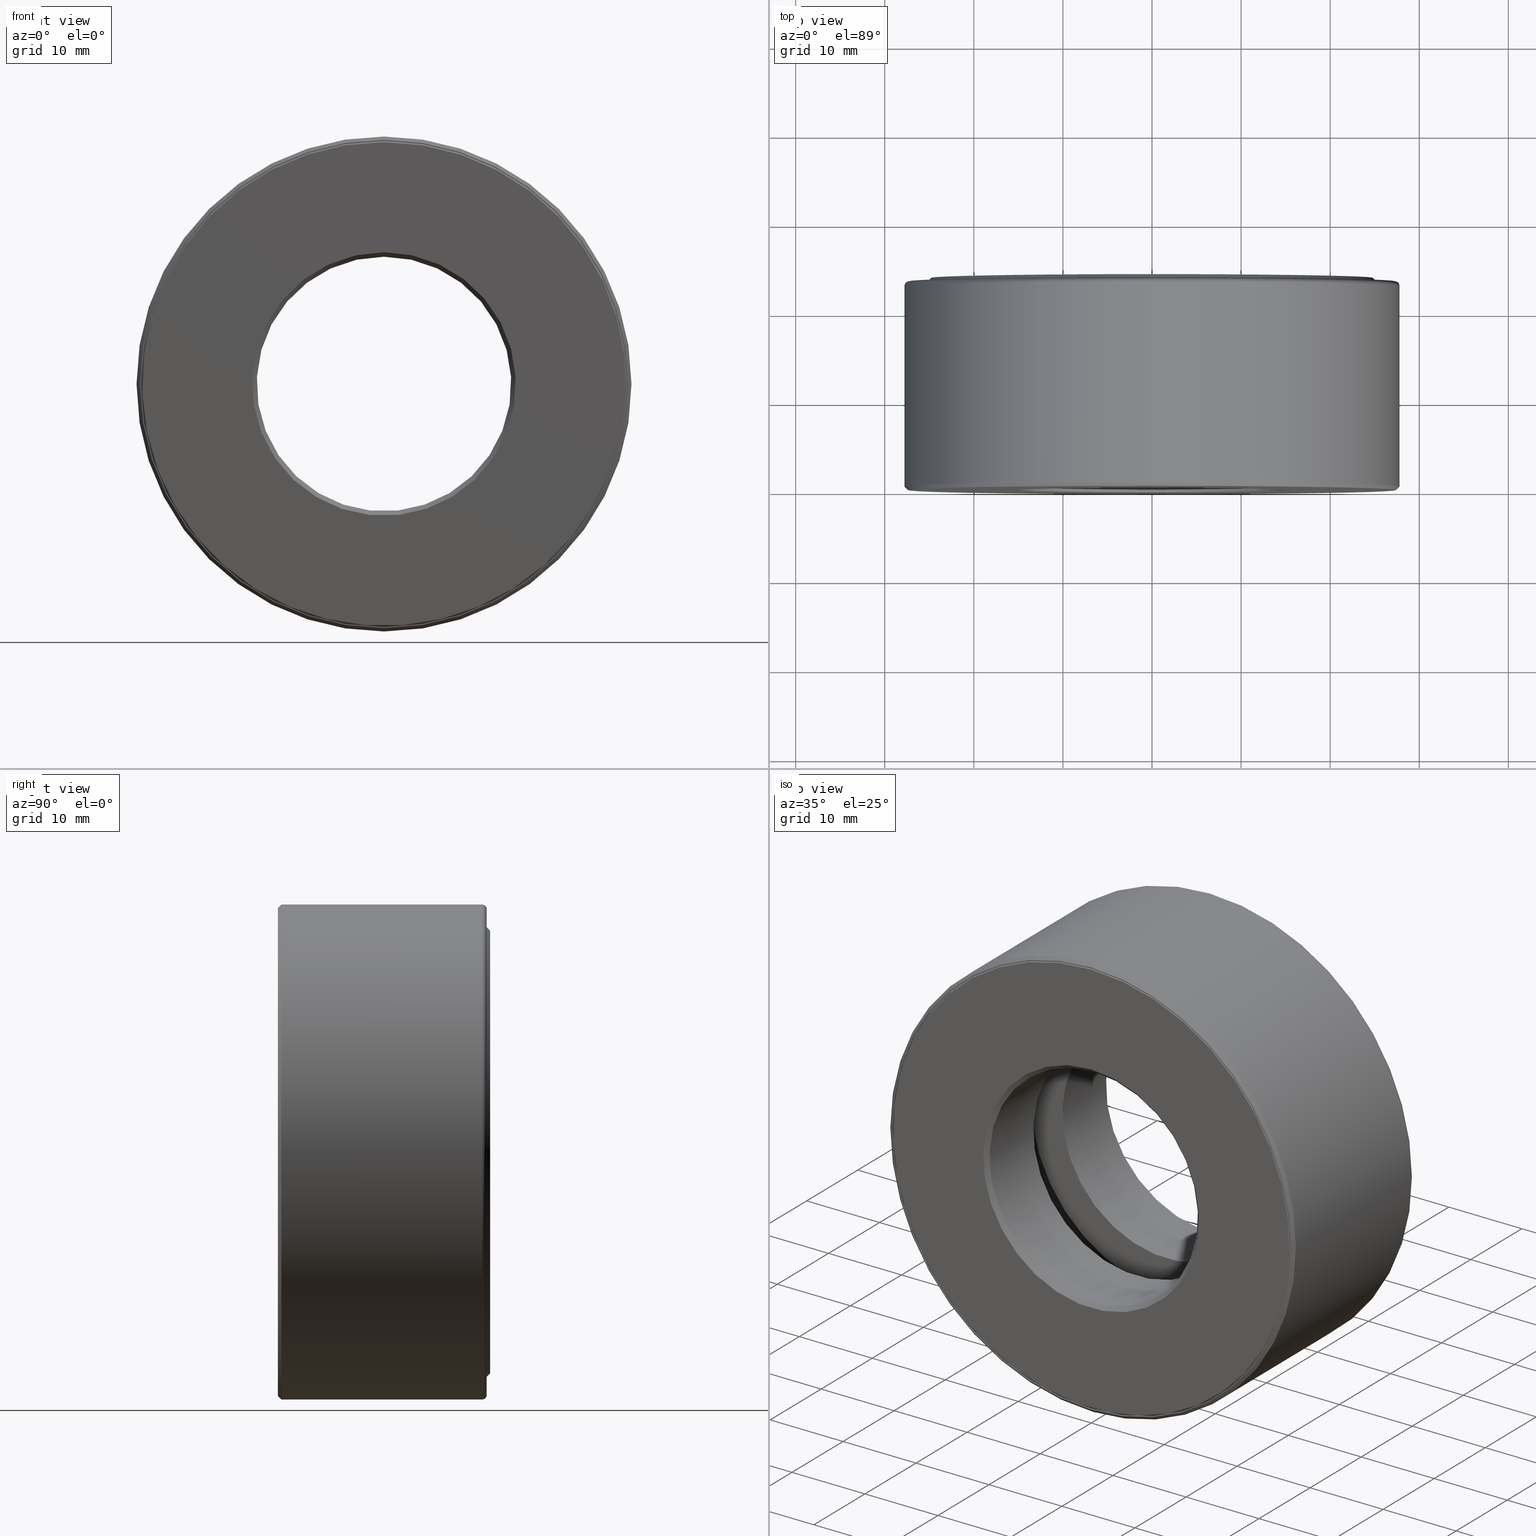
[diagram: canonical four-view strip — front | top / right | iso, engineering-drawing reading convention]
A machine part, canonical four-view strip (front | top / right | iso — engineering-drawing reading convention). The complete STEP part file that produces these views, byte-faithful:
ISO-10303-21;
HEADER;
FILE_DESCRIPTION (( 'STEP AP203' ),
    '1' );
FILE_NAME ('T-100-11.step',
    '2016-06-29T18:27:16',
    ( '' ),
    ( '' ),
    'SwSTEP 2.0',
    'SolidWorks 2016',
    '' );
FILE_SCHEMA (( 'CONFIG_CONTROL_DESIGN' ));
ENDSEC;

DATA;
#1 = DIRECTION ( 'NONE',  ( 0.0000000000000000000, 0.0000000000000000000, 1.000000000000000000 ) ) ;
#2 = ORIENTED_EDGE ( 'NONE', *, *, #174, .T. ) ;
#3 = AXIS2_PLACEMENT_3D ( 'NONE', #149, #12, #103 ) ;
#4 = EDGE_LOOP ( 'NONE', ( #470 ) ) ;
#5 = DIRECTION ( 'NONE',  ( 0.0000000000000000000, 0.0000000000000000000, 1.000000000000000000 ) ) ;
#6 = CARTESIAN_POINT ( 'NONE',  ( 0.0000000000000000000, 0.9024999999999999700, 0.0000000000000000000 ) ) ;
#7 = ADVANCED_FACE ( 'NONE', ( #176, #362 ), #20, .F. ) ;
#8 = CIRCLE ( 'NONE', #367, 0.5624999999999998900 ) ;
#9 = DIRECTION ( 'NONE',  ( 0.0000000000000000000, 0.0000000000000000000, 1.000000000000000000 ) ) ;
#10 = DIRECTION ( 'NONE',  ( -1.000000000000000000, 0.0000000000000000000, 6.982962677686263600E-015 ) ) ;
#11 = EDGE_CURVE ( 'NONE', #278, #278, #568, .T. ) ;
#12 = DIRECTION ( 'NONE',  ( -0.0000000000000000000, 1.000000000000000000, -0.0000000000000000000 ) ) ;
#13 = AXIS2_PLACEMENT_3D ( 'NONE', #291, #396, #445 ) ;
#14 = CLOSED_SHELL ( 'NONE', ( #179 ) ) ;
#15 = EDGE_LOOP ( 'NONE', ( #251 ) ) ;
#16 = PRODUCT_DEFINITION_FORMATION_WITH_SPECIFIED_SOURCE ( 'ANY', '', #436, .NOT_KNOWN. ) ;
#17 = FACE_OUTER_BOUND ( 'NONE', #122, .T. ) ;
#18 = DIRECTION ( 'NONE',  ( 0.0000000000000000000, 0.0000000000000000000, 1.000000000000000000 ) ) ;
#19 = AXIS2_PLACEMENT_3D ( 'NONE', #431, #570, #482 ) ;
#20 = PLANE ( 'NONE',  #573 ) ;
#21 = CARTESIAN_POINT ( 'NONE',  ( 0.0000000000000000000, 0.3562499999999999000, 0.7272499999999998400 ) ) ;
#22 = DIRECTION ( 'NONE',  ( 0.0000000000000000000, -1.000000000000000000, 0.0000000000000000000 ) ) ;
#23 = CIRCLE ( 'NONE', #602, 1.027250000000000000 ) ;
#24 = APPLICATION_CONTEXT ( 'configuration controlled 3d designs of mechanical parts and assemblies' ) ;
#25 = AXIS2_PLACEMENT_3D ( 'NONE', #245, #111, #158 ) ;
#26 = PERSON_AND_ORGANIZATION ( #401, #392 ) ;
#27 = FACE_OUTER_BOUND ( 'NONE', #354, .T. ) ;
#28 = CARTESIAN_POINT ( 'NONE',  ( 0.0000000000000000000, 0.3562500000000000700, 0.5625000000000001100 ) ) ;
#29 = CARTESIAN_POINT ( 'NONE',  ( 0.0000000000000000000, -6.296055922898104700E-017, 1.068750000000000100 ) ) ;
#30 = EDGE_LOOP ( 'NONE', ( #365 ) ) ;
#31 = DIRECTION ( 'NONE',  ( 0.0000000000000000000, 0.0000000000000000000, 1.000000000000000000 ) ) ;
#32 = ORIENTED_EDGE ( 'NONE', *, *, #67, .T. ) ;
#33 = APPROVAL_ROLE ( '' ) ;
#34 = AXIS2_PLACEMENT_3D ( 'NONE', #230, #465, #368 ) ;
#35 = LOCAL_TIME ( 14, 27, 16.00000000000000000, #456 ) ;
#36 = EDGE_CURVE ( 'NONE', #524, #524, #187, .T. ) ;
#37 = CIRCLE ( 'NONE', #534, 1.066749999999999900 ) ;
#38 = ADVANCED_FACE ( 'NONE', ( #68, #554 ), #340, .T. ) ;
#39 = EDGE_LOOP ( 'NONE', ( #228 ) ) ;
#40 = CALENDAR_DATE ( 2016, 29, 6 ) ;
#41 = DIRECTION ( 'NONE',  ( -0.0000000000000000000, 1.000000000000000000, -0.0000000000000000000 ) ) ;
#42 = DIRECTION ( 'NONE',  ( 0.0000000000000000000, 0.0000000000000000000, -1.000000000000000000 ) ) ;
#43 = DIRECTION ( 'NONE',  ( -0.0000000000000000000, 1.000000000000000000, -0.0000000000000000000 ) ) ;
#44 = EDGE_LOOP ( 'NONE', ( #399 ) ) ;
#45 = AXIS2_PLACEMENT_3D ( 'NONE', #308, #41, #90 ) ;
#46 = ORIENTED_EDGE ( 'NONE', *, *, #503, .F. ) ;
#47 = ADVANCED_FACE ( 'NONE', ( #289, #134 ), #113, .F. ) ;
#48 = DIRECTION ( 'NONE',  ( 0.0000000000000000000, -1.000000000000000000, 0.0000000000000000000 ) ) ;
#49 = APPROVAL_PERSON_ORGANIZATION ( #504, #407, #215 ) ;
#50 = CC_DESIGN_PERSON_AND_ORGANIZATION_ASSIGNMENT ( #26, #446, ( #595 ) ) ;
#51 = PLANE ( 'NONE',  #304 ) ;
#52 = FACE_BOUND ( 'NONE', #156, .T. ) ;
#53 = DIRECTION ( 'NONE',  ( 0.0000000000000000000, 0.0000000000000000000, 1.000000000000000000 ) ) ;
#54 = DIRECTION ( 'NONE',  ( 0.0000000000000000000, 0.0000000000000000000, 1.000000000000000000 ) ) ;
#55 = ORIENTED_EDGE ( 'NONE', *, *, #92, .T. ) ;
#56 = DIRECTION ( 'NONE',  ( 1.047444401652939500E-014, 0.0000000000000000000, 1.000000000000000000 ) ) ;
#57 = PLANE ( 'NONE',  #232 ) ;
#58 = DIRECTION ( 'NONE',  ( -0.0000000000000000000, 1.000000000000000000, -0.0000000000000000000 ) ) ;
#59 = DIRECTION ( 'NONE',  ( 6.982962677686263600E-015, -0.0000000000000000000, 1.000000000000000000 ) ) ;
#60 = APPROVAL ( #78, 'UNSPECIFIED' ) ;
#61 = EDGE_LOOP ( 'NONE', ( #527 ) ) ;
#62 = ADVANCED_FACE ( 'NONE', ( #417, #275 ), #578, .T. ) ;
#63 = CARTESIAN_POINT ( 'NONE',  ( 0.0000000000000000000, -6.398782925125907100E-017, 0.0000000000000000000 ) ) ;
#64 = VERTEX_POINT ( 'NONE', #387 ) ;
#65 = AXIS2_PLACEMENT_3D ( 'NONE', #567, #319, #54 ) ;
#66 = CARTESIAN_POINT ( 'NONE',  ( 0.0000000000000000000, 0.5812499999999999300, 0.0000000000000000000 ) ) ;
#67 = EDGE_CURVE ( 'NONE', #466, #466, #23, .T. ) ;
#68 = FACE_OUTER_BOUND ( 'NONE', #397, .T. ) ;
#69 = CONICAL_SURFACE ( 'NONE', #3, 1.078750000000000100, 0.7853981633974438400 ) ;
#70 = DIRECTION ( 'NONE',  ( 0.0000000000000000000, -1.000000000000000000, 0.0000000000000000000 ) ) ;
#71 = CARTESIAN_POINT ( 'NONE',  ( 0.0000000000000000000, 0.5812500000000000400, 1.027250000000000000 ) ) ;
#72 = ORIENTED_EDGE ( 'NONE', *, *, #372, .T. ) ;
#73 = ORIENTED_EDGE ( 'NONE', *, *, #478, .T. ) ;
#74 = CARTESIAN_POINT ( 'NONE',  ( 0.0000000000000000000, 0.9225000000000001000, 0.0000000000000000000 ) ) ;
#75 = EDGE_CURVE ( 'NONE', #405, #405, #300, .T. ) ;
#76 = PERSON_AND_ORGANIZATION ( #401, #392 ) ;
#77 = CARTESIAN_POINT ( 'NONE',  ( 0.0000000000000000000, 0.0000000000000000000, 0.0000000000000000000 ) ) ;
#78 = APPROVAL_STATUS ( 'not_yet_approved' ) ;
#79 = SPHERICAL_SURFACE ( 'NONE', #563, 0.1874999999999999400 ) ;
#80 = ORIENTED_EDGE ( 'NONE', *, *, #220, .T. ) ;
#81 = AXIS2_PLACEMENT_3D ( 'NONE', #382, #378, #384 ) ;
#82 = TOROIDAL_SURFACE ( 'NONE', #390, 1.073750000000000000, 0.02000000000000005900 ) ;
#83 = EDGE_CURVE ( 'NONE', #314, #314, #389, .T. ) ;
#84 = EDGE_LOOP ( 'NONE', ( #94 ) ) ;
#85 = ORIENTED_EDGE ( 'NONE', *, *, #210, .F. ) ;
#86 = LOCAL_TIME ( 14, 27, 16.00000000000000000, #391 ) ;
#87 = CC_DESIGN_DATE_AND_TIME_ASSIGNMENT ( #374, #585, ( #595 ) ) ;
#88 = DIRECTION ( 'NONE',  ( 1.000000000000000000, 0.0000000000000000000, -1.047444401652939500E-014 ) ) ;
#89 = ADVANCED_FACE ( 'NONE', ( #126, #221 ), #586, .F. ) ;
#90 = DIRECTION ( 'NONE',  ( 0.0000000000000000000, 0.0000000000000000000, 1.000000000000000000 ) ) ;
#91 = DIRECTION ( 'NONE',  ( -0.0000000000000000000, 1.000000000000000000, -0.0000000000000000000 ) ) ;
#92 = EDGE_CURVE ( 'NONE', #351, #351, #268, .T. ) ;
#93 = ADVANCED_BREP_SHAPE_REPRESENTATION ( 'T-100-11', ( #453, #318, #296, #218, #271, #276, #546 ), #459 ) ;
#94 = ORIENTED_EDGE ( 'NONE', *, *, #337, .T. ) ;
#95 = DIRECTION ( 'NONE',  ( 0.0000000000000000000, 0.0000000000000000000, 1.000000000000000000 ) ) ;
#96 = DIRECTION ( 'NONE',  ( 0.0000000000000000000, 0.0000000000000000000, 1.000000000000000000 ) ) ;
#97 = CYLINDRICAL_SURFACE ( 'NONE', #541, 1.093750000000000000 ) ;
#98 = CARTESIAN_POINT ( 'NONE',  ( 0.0000000000000000000, 0.9024999999999999700, 0.0000000000000000000 ) ) ;
#99 = AXIS2_PLACEMENT_3D ( 'NONE', #188, #519, #512 ) ;
#100 = ADVANCED_FACE ( 'NONE', ( #442, #325 ), #309, .F. ) ;
#101 = EDGE_LOOP ( 'NONE', ( #511 ) ) ;
#102 = CARTESIAN_POINT ( 'NONE',  ( 0.0000000000000000000, 0.0000000000000000000, 0.0000000000000000000 ) ) ;
#103 = DIRECTION ( 'NONE',  ( 0.0000000000000000000, 0.0000000000000000000, 1.000000000000000000 ) ) ;
#104 = FACE_OUTER_BOUND ( 'NONE', #342, .T. ) ;
#105 = CARTESIAN_POINT ( 'NONE',  ( 3.062902004500138500E-015, 0.4687499999999998900, 0.8772499999999998600 ) ) ;
#106 = CONICAL_SURFACE ( 'NONE', #45, 0.5625000000000001100, 0.7853981633974449500 ) ;
#107 = EDGE_LOOP ( 'NONE', ( #371 ) ) ;
#108 = CARTESIAN_POINT ( 'NONE',  ( 0.0000000000000000000, 0.9024999999999999700, 1.073750000000000000 ) ) ;
#109 = VERTEX_POINT ( 'NONE', #248 ) ;
#110 = FACE_BOUND ( 'NONE', #566, .T. ) ;
#111 = DIRECTION ( 'NONE',  ( -0.0000000000000000000, 1.000000000000000000, -0.0000000000000000000 ) ) ;
#112 = APPLICATION_PROTOCOL_DEFINITION ( 'international standard', 'config_control_design', 1994, #24 ) ;
#113 = CYLINDRICAL_SURFACE ( 'NONE', #154, 1.013750000000000200 ) ;
#114 = EDGE_LOOP ( 'NONE', ( #55 ) ) ;
#115 = AXIS2_PLACEMENT_3D ( 'NONE', #485, #250, #293 ) ;
#116 = CARTESIAN_POINT ( 'NONE',  ( 0.0000000000000000000, 0.9024999999999999700, 1.013750000000000200 ) ) ;
#117 = CALENDAR_DATE ( 2016, 29, 6 ) ;
#118 = FACE_BOUND ( 'NONE', #285, .T. ) ;
#119 = DIRECTION ( 'NONE',  ( 0.0000000000000000000, 0.0000000000000000000, 1.000000000000000000 ) ) ;
#120 = APPROVAL_STATUS ( 'not_yet_approved' ) ;
#121 = FACE_BOUND ( 'NONE', #148, .T. ) ;
#122 = EDGE_LOOP ( 'NONE', ( #520 ) ) ;
#123 = AXIS2_PLACEMENT_3D ( 'NONE', #229, #184, #516 ) ;
#124 = VERTEX_POINT ( 'NONE', #71 ) ;
#125 = CIRCLE ( 'NONE', #406, 1.066749999999999900 ) ;
#126 = FACE_OUTER_BOUND ( 'NONE', #444, .T. ) ;
#127 = CLOSED_SHELL ( 'NONE', ( #510 ) ) ;
#128 = AXIS2_PLACEMENT_3D ( 'NONE', #479, #281, #531 ) ;
#129 = ADVANCED_FACE ( 'NONE', ( #565, #195 ), #480, .F. ) ;
#130 = FACE_OUTER_BOUND ( 'NONE', #549, .T. ) ;
#131 = ADVANCED_FACE ( 'NONE', ( ), #79, .T. ) ;
#132 = AXIS2_PLACEMENT_3D ( 'NONE', #6, #424, #324 ) ;
#133 = ADVANCED_FACE ( 'NONE', ( #203, #121 ), #106, .F. ) ;
#134 = FACE_OUTER_BOUND ( 'NONE', #114, .T. ) ;
#135 = CARTESIAN_POINT ( 'NONE',  ( 0.0000000000000000000, 0.9024999999999999700, 0.0000000000000000000 ) ) ;
#136 = CLOSED_SHELL ( 'NONE', ( #100, #328, #236, #352, #47, #7, #423, #193, #471, #279, #129, #322, #361, #89, #477, #460 ) ) ;
#137 = DIRECTION ( 'NONE',  ( 0.0000000000000000000, 0.0000000000000000000, 1.000000000000000000 ) ) ;
#138 = CALENDAR_DATE ( 2016, 29, 6 ) ;
#139 = PRODUCT_RELATED_PRODUCT_CATEGORY ( 'detail', '', ( #436 ) ) ;
#140 = DIRECTION ( 'NONE',  ( 0.0000000000000000000, 0.0000000000000000000, 1.000000000000000000 ) ) ;
#141 = CIRCLE ( 'NONE', #313, 1.073750000000000000 ) ;
#142 = PLANE ( 'NONE',  #99 ) ;
#143 = ORIENTED_EDGE ( 'NONE', *, *, #503, .T. ) ;
#144 = DIRECTION ( 'NONE',  ( -0.0000000000000000000, 1.000000000000000000, -0.0000000000000000000 ) ) ;
#145 = CIRCLE ( 'NONE', #65, 1.027250000000000000 ) ;
#146 = CARTESIAN_POINT ( 'NONE',  ( 0.0000000000000000000, 0.8495000000000003700, 0.0000000000000000000 ) ) ;
#147 = EDGE_LOOP ( 'NONE', ( #380 ) ) ;
#148 = EDGE_LOOP ( 'NONE', ( #449 ) ) ;
#149 = CARTESIAN_POINT ( 'NONE',  ( 0.0000000000000000000, -6.616194359655631800E-017, 0.0000000000000000000 ) ) ;
#150 = DATE_AND_TIME ( #522, #159 ) ;
#151 = VERTEX_POINT ( 'NONE', #299 ) ;
#152 = FACE_OUTER_BOUND ( 'NONE', #147, .T. ) ;
#153 = CARTESIAN_POINT ( 'NONE',  ( 0.0000000000000000000, 0.5812499999999999300, 0.0000000000000000000 ) ) ;
#154 = AXIS2_PLACEMENT_3D ( 'NONE', #288, #335, #493 ) ;
#155 = CARTESIAN_POINT ( 'NONE',  ( 0.0000000000000000000, 0.9375000000000000000, 0.9787499999999999000 ) ) ;
#156 = EDGE_LOOP ( 'NONE', ( #80 ) ) ;
#157 = CARTESIAN_POINT ( 'NONE',  ( 0.0000000000000000000, 0.3562499999999999000, 1.073749999999999800 ) ) ;
#158 = DIRECTION ( 'NONE',  ( 0.0000000000000000000, 0.0000000000000000000, 1.000000000000000000 ) ) ;
#159 = LOCAL_TIME ( 14, 27, 16.00000000000000000, #265 ) ;
#160 = CARTESIAN_POINT ( 'NONE',  ( 0.0000000000000000000, 0.9225000000000001000, 0.0000000000000000000 ) ) ;
#161 = DIRECTION ( 'NONE',  ( 0.0000000000000000000, 0.0000000000000000000, 1.000000000000000000 ) ) ;
#162 = CIRCLE ( 'NONE', #128, 0.5625000000000001100 ) ;
#163 = CC_DESIGN_PERSON_AND_ORGANIZATION_ASSIGNMENT ( #375, #440, ( #436 ) ) ;
#164 = DIRECTION ( 'NONE',  ( 0.0000000000000000000, -0.0000000000000000000, -1.000000000000000000 ) ) ;
#165 = CARTESIAN_POINT ( 'NONE',  ( -1.004991548302126700E-015, 0.5812499999999999300, 0.0000000000000000000 ) ) ;
#166 = ORIENTED_EDGE ( 'NONE', *, *, #347, .F. ) ;
#167 = ORIENTED_EDGE ( 'NONE', *, *, #226, .F. ) ;
#168 = DATE_TIME_ROLE ( 'creation_date' ) ;
#169 = CARTESIAN_POINT ( 'NONE',  ( 0.0000000000000000000, 0.4687499999999999400, 0.0000000000000000000 ) ) ;
#170 = SECURITY_CLASSIFICATION_LEVEL ( 'unclassified' ) ;
#171 = ORIENTED_EDGE ( 'NONE', *, *, #359, .T. ) ;
#172 = ADVANCED_FACE ( 'NONE', ( #599, #348 ), #227, .F. ) ;
#173 = SPHERICAL_SURFACE ( 'NONE', #584, 0.1874999999999999400 ) ;
#174 = EDGE_CURVE ( 'NONE', #200, #200, #217, .T. ) ;
#175 = DIRECTION ( 'NONE',  ( 0.0000000000000000000, 0.0000000000000000000, 1.000000000000000000 ) ) ;
#176 = FACE_BOUND ( 'NONE', #15, .T. ) ;
#177 = ORIENTED_EDGE ( 'NONE', *, *, #36, .T. ) ;
#178 = APPROVAL ( #120, 'UNSPECIFIED' ) ;
#179 = ADVANCED_FACE ( 'NONE', ( ), #448, .T. ) ;
#180 = DIRECTION ( 'NONE',  ( -0.0000000000000000000, 1.000000000000000000, -0.0000000000000000000 ) ) ;
#181 = CARTESIAN_POINT ( 'NONE',  ( 0.0000000000000000000, 0.0000000000000000000, 0.0000000000000000000 ) ) ;
#182 = DIRECTION ( 'NONE',  ( 0.0000000000000000000, 0.0000000000000000000, -1.000000000000000000 ) ) ;
#183 = AXIS2_PLACEMENT_3D ( 'NONE', #135, #277, #96 ) ;
#184 = DIRECTION ( 'NONE',  ( -0.0000000000000000000, 1.000000000000000000, -0.0000000000000000000 ) ) ;
#185 = AXIS2_PLACEMENT_3D ( 'NONE', #223, #48, #182 ) ;
#186 = CARTESIAN_POINT ( 'NONE',  ( 0.0000000000000000000, 0.3562499999999999000, 0.0000000000000000000 ) ) ;
#187 = CIRCLE ( 'NONE', #261, 0.5625000000000001100 ) ;
#188 = CARTESIAN_POINT ( 'NONE',  ( 0.0000000000000000000, 0.9375000000000000000, 0.0000000000000000000 ) ) ;
#189 = VERTEX_POINT ( 'NONE', #108 ) ;
#190 = CIRCLE ( 'NONE', #183, 1.073750000000000000 ) ;
#191 = PRODUCT_DEFINITION ( 'UNKNOWN', '', #16, #498 ) ;
#192 = DIRECTION ( 'NONE',  ( 0.0000000000000000000, 0.0000000000000000000, 1.000000000000000000 ) ) ;
#193 = ADVANCED_FACE ( 'NONE', ( #316, #332 ), #97, .T. ) ;
#194 = DIMENSIONAL_EXPONENTS ( 1.000000000000000000, 0.0000000000000000000, 0.0000000000000000000, 0.0000000000000000000, 0.0000000000000000000, 0.0000000000000000000, 0.0000000000000000000 ) ;
#195 = FACE_OUTER_BOUND ( 'NONE', #317, .T. ) ;
#196 = EDGE_LOOP ( 'NONE', ( #463 ) ) ;
#197 = AXIS2_PLACEMENT_3D ( 'NONE', #105, #428, #577 ) ;
#198 = DIRECTION ( 'NONE',  ( -0.0000000000000000000, 1.000000000000000000, -0.0000000000000000000 ) ) ;
#199 = AXIS2_PLACEMENT_3D ( 'NONE', #169, #550, #508 ) ;
#200 = VERTEX_POINT ( 'NONE', #157 ) ;
#201 = DIRECTION ( 'NONE',  ( -0.0000000000000000000, 1.000000000000000000, -0.0000000000000000000 ) ) ;
#202 = DIRECTION ( 'NONE',  ( -0.0000000000000000000, 1.000000000000000000, -0.0000000000000000000 ) ) ;
#203 = FACE_OUTER_BOUND ( 'NONE', #39, .T. ) ;
#204 = EDGE_LOOP ( 'NONE', ( #177 ) ) ;
#205 = DIRECTION ( 'NONE',  ( 0.0000000000000000000, 0.0000000000000000000, 1.000000000000000000 ) ) ;
#206 = VERTEX_POINT ( 'NONE', #492 ) ;
#207 = CARTESIAN_POINT ( 'NONE',  ( 0.0000000000000000000, 0.0000000000000000000, 0.0000000000000000000 ) ) ;
#208 = DIRECTION ( 'NONE',  ( -0.0000000000000000000, 1.000000000000000000, -0.0000000000000000000 ) ) ;
#209 = EDGE_LOOP ( 'NONE', ( #561 ) ) ;
#210 = EDGE_CURVE ( 'NONE', #430, #430, #558, .T. ) ;
#211 =( LENGTH_UNIT ( ) NAMED_UNIT ( * ) SI_UNIT ( $, .METRE. ) );
#212 = EDGE_LOOP ( 'NONE', ( #143 ) ) ;
#213 = CARTESIAN_POINT ( 'NONE',  ( 0.0000000000000000000, 0.9375000000000000000, 0.5825000000000001300 ) ) ;
#214 = CC_DESIGN_APPROVAL ( #178, ( #595 ) ) ;
#215 = APPROVAL_ROLE ( '' ) ;
#216 = DIRECTION ( 'NONE',  ( 1.000000000000000000, 0.0000000000000000000, 0.0000000000000000000 ) ) ;
#217 = CIRCLE ( 'NONE', #395, 1.073749999999999800 ) ;
#218 = MANIFOLD_SOLID_BREP ( 'BALLS[1]', #272 ) ;
#219 = SPHERICAL_SURFACE ( 'NONE', #197, 0.1874999999999999400 ) ;
#220 = EDGE_CURVE ( 'NONE', #415, #415, #360, .T. ) ;
#221 = FACE_BOUND ( 'NONE', #500, .T. ) ;
#222 = ORIENTED_EDGE ( 'NONE', *, *, #174, .F. ) ;
#223 = CARTESIAN_POINT ( 'NONE',  ( 0.0000000000000000000, 0.02000000000000019800, 0.0000000000000000000 ) ) ;
#224 = DIRECTION ( 'NONE',  ( 0.0000000000000000000, 0.0000000000000000000, 1.000000000000000000 ) ) ;
#225 = FACE_OUTER_BOUND ( 'NONE', #569, .T. ) ;
#226 = EDGE_CURVE ( 'NONE', #557, #557, #269, .T. ) ;
#227 = TOROIDAL_SURFACE ( 'NONE', #199, 0.8772499999999998600, 0.1875000000000000800 ) ;
#228 = ORIENTED_EDGE ( 'NONE', *, *, #243, .T. ) ;
#229 = CARTESIAN_POINT ( 'NONE',  ( 0.0000000000000000000, -6.296055922898104700E-017, 0.0000000000000000000 ) ) ;
#230 = CARTESIAN_POINT ( 'NONE',  ( 0.0000000000000000000, 0.9375000000000000000, 0.0000000000000000000 ) ) ;
#231 = FACE_OUTER_BOUND ( 'NONE', #270, .T. ) ;
#232 = AXIS2_PLACEMENT_3D ( 'NONE', #98, #373, #413 ) ;
#233 = CARTESIAN_POINT ( 'NONE',  ( -9.765935570536967800E-033, -1.440622965408887200E-017, 0.0000000000000000000 ) ) ;
#234 = EDGE_LOOP ( 'NONE', ( #590 ) ) ;
#235 = ORIENTED_EDGE ( 'NONE', *, *, #347, .T. ) ;
#236 = ADVANCED_FACE ( 'NONE', ( #225, #104 ), #273, .F. ) ;
#237 = AXIS2_PLACEMENT_3D ( 'NONE', #297, #208, #537 ) ;
#238 = FACE_BOUND ( 'NONE', #355, .T. ) ;
#239 = CC_DESIGN_SECURITY_CLASSIFICATION ( #595, ( #16 ) ) ;
#240 = ORIENTED_EDGE ( 'NONE', *, *, #410, .T. ) ;
#241 = ORIENTED_EDGE ( 'NONE', *, *, #552, .F. ) ;
#242 = DIRECTION ( 'NONE',  ( -0.0000000000000000000, 1.000000000000000000, -0.0000000000000000000 ) ) ;
#243 = EDGE_CURVE ( 'NONE', #515, #515, #393, .T. ) ;
#244 = VERTEX_POINT ( 'NONE', #28 ) ;
#245 = CARTESIAN_POINT ( 'NONE',  ( 0.0000000000000000000, 0.3562499999999999000, 0.0000000000000000000 ) ) ;
#246 = CIRCLE ( 'NONE', #598, 0.9787499999999999000 ) ;
#247 = CARTESIAN_POINT ( 'NONE',  ( 0.0000000000000000000, 0.5812499999999999300, 0.5625000000000001100 ) ) ;
#248 = CARTESIAN_POINT ( 'NONE',  ( 0.0000000000000000000, 0.004999999999999680000, 1.073749999999999800 ) ) ;
#249 = EDGE_LOOP ( 'NONE', ( #241 ) ) ;
#250 = DIRECTION ( 'NONE',  ( 0.0000000000000000000, -1.000000000000000000, 0.0000000000000000000 ) ) ;
#251 = ORIENTED_EDGE ( 'NONE', *, *, #92, .F. ) ;
#252 = PLANE ( 'NONE',  #377 ) ;
#253 = AXIS2_PLACEMENT_3D ( 'NONE', #467, #370, #95 ) ;
#254 = CC_DESIGN_APPROVAL ( #60, ( #191 ) ) ;
#255 = PERSON_AND_ORGANIZATION ( #401, #392 ) ;
#256 = FACE_BOUND ( 'NONE', #326, .T. ) ;
#257 = CARTESIAN_POINT ( 'NONE',  ( 0.0000000000000000000, 0.9024999999999999700, 1.093750000000000000 ) ) ;
#258 = CARTESIAN_POINT ( 'NONE',  ( 0.0000000000000000000, 0.3562499999999999000, 0.0000000000000000000 ) ) ;
#259 = CARTESIAN_POINT ( 'NONE',  ( 0.0000000000000000000, 0.5812499999999999300, 1.066749999999999900 ) ) ;
#260 = ORIENTED_EDGE ( 'NONE', *, *, #383, .T. ) ;
#261 = AXIS2_PLACEMENT_3D ( 'NONE', #339, #539, #161 ) ;
#262 = APPROVAL_STATUS ( 'not_yet_approved' ) ;
#263 = EDGE_LOOP ( 'NONE', ( #310 ) ) ;
#264 = CARTESIAN_POINT ( 'NONE',  ( 0.0000000000000000000, -6.296055922898104700E-017, 0.0000000000000000000 ) ) ;
#265 = COORDINATED_UNIVERSAL_TIME_OFFSET ( 5, 0, .BEHIND. ) ;
#266 = FACE_OUTER_BOUND ( 'NONE', #212, .T. ) ;
#267 = AXIS2_PLACEMENT_3D ( 'NONE', #66, #144, #472 ) ;
#268 = CIRCLE ( 'NONE', #526, 1.013750000000000200 ) ;
#269 = CIRCLE ( 'NONE', #327, 0.5825000000000000200 ) ;
#270 = EDGE_LOOP ( 'NONE', ( #409 ) ) ;
#271 = MANIFOLD_SOLID_BREP ( 'BALLS[2]', #127 ) ;
#272 = CLOSED_SHELL ( 'NONE', ( #523 ) ) ;
#273 = CYLINDRICAL_SURFACE ( 'NONE', #253, 1.073749999999999800 ) ;
#274 = DIRECTION ( 'NONE',  ( -0.0000000000000000000, 1.000000000000000000, 0.0000000000000000000 ) ) ;
#275 = FACE_BOUND ( 'NONE', #209, .T. ) ;
#276 = MANIFOLD_SOLID_BREP ( 'BALLS[3]', #14 ) ;
#277 = DIRECTION ( 'NONE',  ( -0.0000000000000000000, 1.000000000000000000, -0.0000000000000000000 ) ) ;
#278 = VERTEX_POINT ( 'NONE', #21 ) ;
#279 = ADVANCED_FACE ( 'NONE', ( #494, #256 ), #51, .F. ) ;
#280 = AXIS2_PLACEMENT_3D ( 'NONE', #186, #521, #323 ) ;
#281 = DIRECTION ( 'NONE',  ( -0.0000000000000000000, 1.000000000000000000, -0.0000000000000000000 ) ) ;
#282 = ADVANCED_FACE ( 'NONE', ( #369, #231 ), #594, .F. ) ;
#283 = CARTESIAN_POINT ( 'NONE',  ( 0.0000000000000000000, 0.0000000000000000000, 0.0000000000000000000 ) ) ;
#284 = ORIENTED_EDGE ( 'NONE', *, *, #83, .F. ) ;
#285 = EDGE_LOOP ( 'NONE', ( #46 ) ) ;
#286 = DIRECTION ( 'NONE',  ( 0.0000000000000000000, 0.0000000000000000000, 1.000000000000000000 ) ) ;
#287 = DIRECTION ( 'NONE',  ( -0.0000000000000000000, 1.000000000000000000, -0.0000000000000000000 ) ) ;
#288 = CARTESIAN_POINT ( 'NONE',  ( 0.0000000000000000000, 0.0000000000000000000, 0.0000000000000000000 ) ) ;
#289 = FACE_OUTER_BOUND ( 'NONE', #249, .T. ) ;
#290 = DIRECTION ( 'NONE',  ( 0.0000000000000000000, 0.0000000000000000000, 1.000000000000000000 ) ) ;
#291 = CARTESIAN_POINT ( 'NONE',  ( 0.0000000000000000000, 0.9024999999999999700, 0.0000000000000000000 ) ) ;
#292 = VERTEX_POINT ( 'NONE', #259 ) ;
#293 = DIRECTION ( 'NONE',  ( 0.0000000000000000000, 0.0000000000000000000, -1.000000000000000000 ) ) ;
#294 = FACE_BOUND ( 'NONE', #84, .T. ) ;
#295 = DIRECTION ( 'NONE',  ( 0.0000000000000000000, -1.000000000000000000, 0.0000000000000000000 ) ) ;
#296 = MANIFOLD_SOLID_BREP ( 'Revolve3', #502 ) ;
#297 = CARTESIAN_POINT ( 'NONE',  ( 0.0000000000000000000, 0.0000000000000000000, 0.0000000000000000000 ) ) ;
#298 = AXIS2_PLACEMENT_3D ( 'NONE', #400, #43, #461 ) ;
#299 = CARTESIAN_POINT ( 'NONE',  ( 0.0000000000000000000, 0.5812500000000000400, 0.7272499999999998400 ) ) ;
#300 = CIRCLE ( 'NONE', #439, 1.068750000000000100 ) ;
#301 = EDGE_LOOP ( 'NONE', ( #284 ) ) ;
#302 = CARTESIAN_POINT ( 'NONE',  ( 0.0000000000000000000, 0.4687499999999999400, 0.0000000000000000000 ) ) ;
#303 = APPROVAL_ROLE ( '' ) ;
#304 = AXIS2_PLACEMENT_3D ( 'NONE', #315, #321, #1 ) ;
#305 = CLOSED_SHELL ( 'NONE', ( #597, #172, #556, #282, #133, #363, #62, #38 ) ) ;
#306 = CYLINDRICAL_SURFACE ( 'NONE', #452, 0.5625000000000000000 ) ;
#307 = AXIS2_PLACEMENT_3D ( 'NONE', #63, #202, #18 ) ;
#308 = CARTESIAN_POINT ( 'NONE',  ( 0.0000000000000000000, 0.9174999999999998700, 0.0000000000000000000 ) ) ;
#309 = TOROIDAL_SURFACE ( 'NONE', #468, 0.8772499999999998600, 0.1875000000000000600 ) ;
#310 = ORIENTED_EDGE ( 'NONE', *, *, #243, .F. ) ;
#311 = CARTESIAN_POINT ( 'NONE',  ( -9.188706013500415000E-015, 0.4687499999999998900, -0.8772499999999998600 ) ) ;
#312 = PERSON_AND_ORGANIZATION ( #401, #392 ) ;
#313 = AXIS2_PLACEMENT_3D ( 'NONE', #160, #548, #290 ) ;
#314 = VERTEX_POINT ( 'NONE', #388 ) ;
#315 = CARTESIAN_POINT ( 'NONE',  ( -1.751974655613626800E-031, -6.507488642390768800E-017, 0.0000000000000000000 ) ) ;
#316 = FACE_OUTER_BOUND ( 'NONE', #454, .T. ) ;
#317 = EDGE_LOOP ( 'NONE', ( #536 ) ) ;
#318 = MANIFOLD_SOLID_BREP ( 'Revolve2[2]', #305 ) ;
#319 = DIRECTION ( 'NONE',  ( -0.0000000000000000000, 1.000000000000000000, -0.0000000000000000000 ) ) ;
#320 = FACE_OUTER_BOUND ( 'NONE', #107, .T. ) ;
#321 = DIRECTION ( 'NONE',  ( -0.0000000000000000000, 1.000000000000000000, 0.0000000000000000000 ) ) ;
#322 = ADVANCED_FACE ( 'NONE', ( #130, #238 ), #605, .T. ) ;
#323 = DIRECTION ( 'NONE',  ( 0.0000000000000000000, -0.0000000000000000000, -1.000000000000000000 ) ) ;
#324 = DIRECTION ( 'NONE',  ( 0.0000000000000000000, 0.0000000000000000000, 1.000000000000000000 ) ) ;
#325 = FACE_OUTER_BOUND ( 'NONE', #560, .T. ) ;
#326 = EDGE_LOOP ( 'NONE', ( #72 ) ) ;
#327 = AXIS2_PLACEMENT_3D ( 'NONE', #606, #58, #462 ) ;
#328 = ADVANCED_FACE ( 'NONE', ( #336, #589 ), #416, .F. ) ;
#329 = COORDINATED_UNIVERSAL_TIME_OFFSET ( 5, 0, .BEHIND. ) ;
#330 = PLANE ( 'NONE',  #379 ) ;
#331 = PLANE ( 'NONE',  #81 ) ;
#332 = FACE_OUTER_BOUND ( 'NONE', #196, .T. ) ;
#333 = ORIENTED_EDGE ( 'NONE', *, *, #337, .F. ) ;
#334 = CARTESIAN_POINT ( 'NONE',  ( 0.8772499999999998600, 0.4687499999999998900, -6.125804009000276900E-015 ) ) ;
#335 = DIRECTION ( 'NONE',  ( -0.0000000000000000000, 1.000000000000000000, -0.0000000000000000000 ) ) ;
#336 = FACE_BOUND ( 'NONE', #490, .T. ) ;
#337 = EDGE_CURVE ( 'NONE', #124, #124, #145, .T. ) ;
#338 = MECHANICAL_CONTEXT ( 'NONE', #24, 'mechanical' ) ;
#339 = CARTESIAN_POINT ( 'NONE',  ( 0.0000000000000000000, 0.9174999999999998700, 0.0000000000000000000 ) ) ;
#340 = CYLINDRICAL_SURFACE ( 'NONE', #237, 1.066749999999999900 ) ;
#341 = CARTESIAN_POINT ( 'NONE',  ( 0.0000000000000000000, 0.9225000000000001000, 1.013750000000000200 ) ) ;
#342 = EDGE_LOOP ( 'NONE', ( #235 ) ) ;
#343 = DATE_AND_TIME ( #40, #86 ) ;
#344 =( CONVERSION_BASED_UNIT ( 'INCH', #593 ) LENGTH_UNIT ( ) NAMED_UNIT ( #194 ) );
#345 = FACE_OUTER_BOUND ( 'NONE', #301, .T. ) ;
#346 = CARTESIAN_POINT ( 'NONE',  ( 0.0000000000000000000, -6.616194359655631800E-017, 1.078750000000000100 ) ) ;
#347 = EDGE_CURVE ( 'NONE', #189, #189, #190, .T. ) ;
#348 = FACE_OUTER_BOUND ( 'NONE', #579, .T. ) ;
#349 = ORIENTED_EDGE ( 'NONE', *, *, #513, .T. ) ;
#350 = APPROVAL_DATE_TIME ( #464, #178 ) ;
#351 = VERTEX_POINT ( 'NONE', #341 ) ;
#352 = ADVANCED_FACE ( 'NONE', ( #506, #438 ), #57, .F. ) ;
#353 = AXIS2_PLACEMENT_3D ( 'NONE', #604, #91, #140 ) ;
#354 = EDGE_LOOP ( 'NONE', ( #427 ) ) ;
#355 = EDGE_LOOP ( 'NONE', ( #425 ) ) ;
#356 = COORDINATED_UNIVERSAL_TIME_OFFSET ( 5, 0, .BEHIND. ) ;
#357 = VERTEX_POINT ( 'NONE', #535 ) ;
#358 = DIRECTION ( 'NONE',  ( -0.0000000000000000000, 1.000000000000000000, -0.0000000000000000000 ) ) ;
#359 = EDGE_CURVE ( 'NONE', #151, #151, #376, .T. ) ;
#360 = CIRCLE ( 'NONE', #553, 1.078750000000000100 ) ;
#361 = ADVANCED_FACE ( 'NONE', ( #476, #483 ), #600, .F. ) ;
#362 = FACE_OUTER_BOUND ( 'NONE', #61, .T. ) ;
#363 = ADVANCED_FACE ( 'NONE', ( #532, #576 ), #142, .T. ) ;
#364 = CARTESIAN_POINT ( 'NONE',  ( 0.0000000000000000000, -6.616194359655631800E-017, 0.0000000000000000000 ) ) ;
#365 = ORIENTED_EDGE ( 'NONE', *, *, #220, .F. ) ;
#366 = DIRECTION ( 'NONE',  ( 0.0000000000000000000, 0.0000000000000000000, 1.000000000000000000 ) ) ;
#367 = AXIS2_PLACEMENT_3D ( 'NONE', #432, #572, #529 ) ;
#368 = DIRECTION ( 'NONE',  ( 0.0000000000000000000, 0.0000000000000000000, 1.000000000000000000 ) ) ;
#369 = FACE_OUTER_BOUND ( 'NONE', #204, .T. ) ;
#370 = DIRECTION ( 'NONE',  ( -0.0000000000000000000, 1.000000000000000000, -0.0000000000000000000 ) ) ;
#371 = ORIENTED_EDGE ( 'NONE', *, *, #210, .T. ) ;
#372 = EDGE_CURVE ( 'NONE', #64, #64, #451, .T. ) ;
#373 = DIRECTION ( 'NONE',  ( -0.0000000000000000000, 1.000000000000000000, 0.0000000000000000000 ) ) ;
#374 = DATE_AND_TIME ( #117, #35 ) ;
#375 = PERSON_AND_ORGANIZATION ( #401, #392 ) ;
#376 = CIRCLE ( 'NONE', #353, 0.7272499999999998400 ) ;
#377 = AXIS2_PLACEMENT_3D ( 'NONE', #165, #295, #164 ) ;
#378 = DIRECTION ( 'NONE',  ( 0.0000000000000000000, -1.000000000000000000, 0.0000000000000000000 ) ) ;
#379 = AXIS2_PLACEMENT_3D ( 'NONE', #543, #70, #496 ) ;
#380 = ORIENTED_EDGE ( 'NONE', *, *, #359, .F. ) ;
#381 = EDGE_LOOP ( 'NONE', ( #2 ) ) ;
#382 = CARTESIAN_POINT ( 'NONE',  ( -2.953629279948092000E-016, 0.3562500000000000100, 0.0000000000000000000 ) ) ;
#383 = EDGE_CURVE ( 'NONE', #206, #206, #8, .T. ) ;
#384 = DIRECTION ( 'NONE',  ( 0.0000000000000000000, -0.0000000000000000000, -1.000000000000000000 ) ) ;
#385 = VERTEX_POINT ( 'NONE', #155 ) ;
#386 = CIRCLE ( 'NONE', #19, 1.073749999999999800 ) ;
#387 = CARTESIAN_POINT ( 'NONE',  ( 0.0000000000000000000, -6.398782925125907100E-017, 1.073749999999999800 ) ) ;
#388 = CARTESIAN_POINT ( 'NONE',  ( 0.0000000000000000000, 0.01500000000000004500, 1.093750000000000000 ) ) ;
#389 = CIRCLE ( 'NONE', #298, 1.093750000000000000 ) ;
#390 = AXIS2_PLACEMENT_3D ( 'NONE', #475, #201, #286 ) ;
#391 = COORDINATED_UNIVERSAL_TIME_OFFSET ( 5, 0, .BEHIND. ) ;
#392 = ORGANIZATION ( 'UNSPECIFIED', 'UNSPECIFIED', '' ) ;
#393 = CIRCLE ( 'NONE', #34, 0.5825000000000001300 ) ;
#394 = CARTESIAN_POINT ( 'NONE',  ( 0.0000000000000000000, 3.414809992080329000E-017, 0.5825000000000000200 ) ) ;
#395 = AXIS2_PLACEMENT_3D ( 'NONE', #457, #180, #137 ) ;
#396 = DIRECTION ( 'NONE',  ( -0.0000000000000000000, 1.000000000000000000, -0.0000000000000000000 ) ) ;
#397 = EDGE_LOOP ( 'NONE', ( #240 ) ) ;
#398 = PERSON_AND_ORGANIZATION_ROLE ( 'design_supplier' ) ;
#399 = ORIENTED_EDGE ( 'NONE', *, *, #75, .F. ) ;
#400 = CARTESIAN_POINT ( 'NONE',  ( 0.0000000000000000000, 0.01500000000000004500, 0.0000000000000000000 ) ) ;
#401 = PERSON ( 'UNSPECIFIED', 'UNSPECIFIED', 'UNSPECIFIED', ('UNSPECIFIED'), ('UNSPECIFIED'), ('UNSPECIFIED') ) ;
#402 = FACE_OUTER_BOUND ( 'NONE', #481, .T. ) ;
#403 = EDGE_LOOP ( 'NONE', ( #166 ) ) ;
#404 = EDGE_CURVE ( 'NONE', #385, #385, #246, .T. ) ;
#405 = VERTEX_POINT ( 'NONE', #29 ) ;
#406 = AXIS2_PLACEMENT_3D ( 'NONE', #146, #198, #119 ) ;
#407 = APPROVAL ( #262, 'UNSPECIFIED' ) ;
#408 = EDGE_LOOP ( 'NONE', ( #349 ) ) ;
#409 = ORIENTED_EDGE ( 'NONE', *, *, #478, .F. ) ;
#410 = EDGE_CURVE ( 'NONE', #292, #292, #37, .T. ) ;
#411 = CARTESIAN_POINT ( 'NONE',  ( 0.0000000000000000000, 0.9225000000000001000, 0.0000000000000000000 ) ) ;
#412 = LOCAL_TIME ( 14, 27, 16.00000000000000000, #329 ) ;
#413 = DIRECTION ( 'NONE',  ( 0.0000000000000000000, 0.0000000000000000000, 1.000000000000000000 ) ) ;
#414 = DIRECTION ( 'NONE',  ( -0.0000000000000000000, 1.000000000000000000, -0.0000000000000000000 ) ) ;
#415 = VERTEX_POINT ( 'NONE', #346 ) ;
#416 = PLANE ( 'NONE',  #280 ) ;
#417 = FACE_OUTER_BOUND ( 'NONE', #408, .T. ) ;
#418 = DIRECTION ( 'NONE',  ( -0.0000000000000000000, 1.000000000000000000, -0.0000000000000000000 ) ) ;
#419 = PERSON_AND_ORGANIZATION ( #401, #392 ) ;
#420 = CC_DESIGN_PERSON_AND_ORGANIZATION_ASSIGNMENT ( #419, #497, ( #191 ) ) ;
#421 = FACE_OUTER_BOUND ( 'NONE', #101, .T. ) ;
#422 = DIRECTION ( 'NONE',  ( -0.0000000000000000000, 1.000000000000000000, -0.0000000000000000000 ) ) ;
#423 = ADVANCED_FACE ( 'NONE', ( #27, #320 ), #82, .T. ) ;
#424 = DIRECTION ( 'NONE',  ( -0.0000000000000000000, 1.000000000000000000, -0.0000000000000000000 ) ) ;
#425 = ORIENTED_EDGE ( 'NONE', *, *, #75, .T. ) ;
#426 = AXIS2_PLACEMENT_3D ( 'NONE', #311, #88, #56 ) ;
#427 = ORIENTED_EDGE ( 'NONE', *, *, #583, .F. ) ;
#428 = DIRECTION ( 'NONE',  ( -1.000000000000000000, 0.0000000000000000000, 3.491481338843131800E-015 ) ) ;
#429 = LOCAL_TIME ( 14, 27, 16.00000000000000000, #356 ) ;
#430 = VERTEX_POINT ( 'NONE', #257 ) ;
#431 = CARTESIAN_POINT ( 'NONE',  ( 0.0000000000000000000, 0.004999999999999680000, 0.0000000000000000000 ) ) ;
#432 = CARTESIAN_POINT ( 'NONE',  ( 0.0000000000000000000, 0.02000000000000019800, 0.0000000000000000000 ) ) ;
#433 = AXIS2_PLACEMENT_3D ( 'NONE', #181, #418, #366 ) ;
#434 = EDGE_LOOP ( 'NONE', ( #574 ) ) ;
#435 = CARTESIAN_POINT ( 'NONE',  ( 0.0000000000000000000, 0.9174999999999998700, 0.5625000000000001100 ) ) ;
#436 = PRODUCT ( 'T-100-11', 'T-100-11', '', ( #338 ) ) ;
#437 =( NAMED_UNIT ( * ) SI_UNIT ( $, .STERADIAN. ) SOLID_ANGLE_UNIT ( ) );
#438 = FACE_BOUND ( 'NONE', #601, .T. ) ;
#439 = AXIS2_PLACEMENT_3D ( 'NONE', #264, #564, #505 ) ;
#440 = PERSON_AND_ORGANIZATION_ROLE ( 'design_owner' ) ;
#441 = DIRECTION ( 'NONE',  ( 0.0000000000000000000, -0.0000000000000000000, -1.000000000000000000 ) ) ;
#442 = FACE_OUTER_BOUND ( 'NONE', #528, .T. ) ;
#443 = CC_DESIGN_APPROVAL ( #407, ( #16 ) ) ;
#444 = EDGE_LOOP ( 'NONE', ( #167 ) ) ;
#445 = DIRECTION ( 'NONE',  ( 0.0000000000000000000, 0.0000000000000000000, 1.000000000000000000 ) ) ;
#446 = PERSON_AND_ORGANIZATION_ROLE ( 'classification_officer' ) ;
#447 = EDGE_CURVE ( 'NONE', #109, #109, #386, .T. ) ;
#448 = SPHERICAL_SURFACE ( 'NONE', #426, 0.1874999999999999400 ) ;
#449 = ORIENTED_EDGE ( 'NONE', *, *, #36, .F. ) ;
#450 = VERTEX_POINT ( 'NONE', #116 ) ;
#451 = CIRCLE ( 'NONE', #307, 1.073749999999999800 ) ;
#452 = AXIS2_PLACEMENT_3D ( 'NONE', #283, #242, #192 ) ;
#453 = MANIFOLD_SOLID_BREP ( 'Revolve2[1]', #136 ) ;
#454 = EDGE_LOOP ( 'NONE', ( #85 ) ) ;
#455 = ORIENTED_EDGE ( 'NONE', *, *, #447, .F. ) ;
#456 = COORDINATED_UNIVERSAL_TIME_OFFSET ( 5, 0, .BEHIND. ) ;
#457 = CARTESIAN_POINT ( 'NONE',  ( 0.0000000000000000000, 0.3562499999999999000, 0.0000000000000000000 ) ) ;
#458 = UNCERTAINTY_MEASURE_WITH_UNIT (LENGTH_MEASURE( 1.000000000000000100E-005 ), #344, 'distance_accuracy_value', 'NONE');
#459 =( GEOMETRIC_REPRESENTATION_CONTEXT ( 3 ) GLOBAL_UNCERTAINTY_ASSIGNED_CONTEXT ( ( #458 ) ) GLOBAL_UNIT_ASSIGNED_CONTEXT ( ( #344, #486, #437 ) ) REPRESENTATION_CONTEXT ( 'NONE', 'WORKASPACE' ) );
#460 = ADVANCED_FACE ( 'NONE', ( #118, #421 ), #331, .F. ) ;
#461 = DIRECTION ( 'NONE',  ( 0.0000000000000000000, 0.0000000000000000000, 1.000000000000000000 ) ) ;
#462 = DIRECTION ( 'NONE',  ( 0.0000000000000000000, 0.0000000000000000000, 1.000000000000000000 ) ) ;
#463 = ORIENTED_EDGE ( 'NONE', *, *, #83, .T. ) ;
#464 = DATE_AND_TIME ( #514, #429 ) ;
#465 = DIRECTION ( 'NONE',  ( -0.0000000000000000000, 1.000000000000000000, -0.0000000000000000000 ) ) ;
#466 = VERTEX_POINT ( 'NONE', #580 ) ;
#467 = CARTESIAN_POINT ( 'NONE',  ( 0.0000000000000000000, 0.0000000000000000000, 0.0000000000000000000 ) ) ;
#468 = AXIS2_PLACEMENT_3D ( 'NONE', #302, #414, #31 ) ;
#469 = ORIENTED_EDGE ( 'NONE', *, *, #11, .F. ) ;
#470 = ORIENTED_EDGE ( 'NONE', *, *, #226, .T. ) ;
#471 = ADVANCED_FACE ( 'NONE', ( #345, #52 ), #69, .T. ) ;
#472 = DIRECTION ( 'NONE',  ( 0.0000000000000000000, 0.0000000000000000000, 1.000000000000000000 ) ) ;
#473 = APPROVAL_PERSON_ORGANIZATION ( #255, #60, #33 ) ;
#474 = CC_DESIGN_PERSON_AND_ORGANIZATION_ASSIGNMENT ( #312, #551, ( #16 ) ) ;
#475 = CARTESIAN_POINT ( 'NONE',  ( 0.0000000000000000000, 0.9024999999999999700, 0.0000000000000000000 ) ) ;
#476 = FACE_OUTER_BOUND ( 'NONE', #44, .T. ) ;
#477 = ADVANCED_FACE ( 'NONE', ( #402, #266 ), #306, .F. ) ;
#478 = EDGE_CURVE ( 'NONE', #501, #501, #517, .T. ) ;
#479 = CARTESIAN_POINT ( 'NONE',  ( 0.0000000000000000000, 0.3562500000000000700, 0.0000000000000000000 ) ) ;
#480 = CYLINDRICAL_SURFACE ( 'NONE', #495, 1.073749999999999800 ) ;
#481 = EDGE_LOOP ( 'NONE', ( #591 ) ) ;
#482 = DIRECTION ( 'NONE',  ( 0.0000000000000000000, 0.0000000000000000000, 1.000000000000000000 ) ) ;
#483 = FACE_BOUND ( 'NONE', #4, .T. ) ;
#484 = CARTESIAN_POINT ( 'NONE',  ( 0.0000000000000000000, 0.8495000000000003700, 1.066749999999999900 ) ) ;
#485 = CARTESIAN_POINT ( 'NONE',  ( 0.0000000000000000000, 0.9375000000000000000, 0.0000000000000000000 ) ) ;
#486 =( NAMED_UNIT ( * ) PLANE_ANGLE_UNIT ( ) SI_UNIT ( $, .RADIAN. ) );
#487 = CC_DESIGN_DATE_AND_TIME_ASSIGNMENT ( #343, #168, ( #191 ) ) ;
#488 = ORIENTED_EDGE ( 'NONE', *, *, #552, .T. ) ;
#489 = APPLICATION_CONTEXT ( 'configuration controlled 3d designs of mechanical parts and assemblies' ) ;
#490 = EDGE_LOOP ( 'NONE', ( #587 ) ) ;
#491 = APPROVAL_PERSON_ORGANIZATION ( #76, #178, #303 ) ;
#492 = CARTESIAN_POINT ( 'NONE',  ( 0.0000000000000000000, 0.02000000000000019800, 0.5624999999999998900 ) ) ;
#493 = DIRECTION ( 'NONE',  ( 0.0000000000000000000, 0.0000000000000000000, 1.000000000000000000 ) ) ;
#494 = FACE_OUTER_BOUND ( 'NONE', #30, .T. ) ;
#495 = AXIS2_PLACEMENT_3D ( 'NONE', #77, #596, #224 ) ;
#496 = DIRECTION ( 'NONE',  ( 0.0000000000000000000, -0.0000000000000000000, -1.000000000000000000 ) ) ;
#497 = PERSON_AND_ORGANIZATION_ROLE ( 'creator' ) ;
#498 = DESIGN_CONTEXT ( 'detailed design', #489, 'design' ) ;
#499 = EDGE_LOOP ( 'NONE', ( #171 ) ) ;
#500 = EDGE_LOOP ( 'NONE', ( #260 ) ) ;
#501 = VERTEX_POINT ( 'NONE', #247 ) ;
#502 = CLOSED_SHELL ( 'NONE', ( #131 ) ) ;
#503 = EDGE_CURVE ( 'NONE', #244, #244, #162, .T. ) ;
#504 = PERSON_AND_ORGANIZATION ( #401, #392 ) ;
#505 = DIRECTION ( 'NONE',  ( 0.0000000000000000000, 0.0000000000000000000, 1.000000000000000000 ) ) ;
#506 = FACE_OUTER_BOUND ( 'NONE', #403, .T. ) ;
#507 = CC_DESIGN_PERSON_AND_ORGANIZATION_ASSIGNMENT ( #582, #398, ( #16 ) ) ;
#508 = DIRECTION ( 'NONE',  ( 0.0000000000000000000, 0.0000000000000000000, 1.000000000000000000 ) ) ;
#509 = EDGE_LOOP ( 'NONE', ( #547 ) ) ;
#510 = ADVANCED_FACE ( 'NONE', ( ), #173, .T. ) ;
#511 = ORIENTED_EDGE ( 'NONE', *, *, #11, .T. ) ;
#512 = DIRECTION ( 'NONE',  ( 0.0000000000000000000, 0.0000000000000000000, 1.000000000000000000 ) ) ;
#513 = EDGE_CURVE ( 'NONE', #588, #588, #125, .T. ) ;
#514 = CALENDAR_DATE ( 2016, 29, 6 ) ;
#515 = VERTEX_POINT ( 'NONE', #213 ) ;
#516 = DIRECTION ( 'NONE',  ( 0.0000000000000000000, 0.0000000000000000000, 1.000000000000000000 ) ) ;
#517 = CIRCLE ( 'NONE', #267, 0.5625000000000001100 ) ;
#518 = DIRECTION ( 'NONE',  ( -0.0000000000000000000, 1.000000000000000000, -0.0000000000000000000 ) ) ;
#519 = DIRECTION ( 'NONE',  ( -0.0000000000000000000, 1.000000000000000000, 0.0000000000000000000 ) ) ;
#520 = ORIENTED_EDGE ( 'NONE', *, *, #410, .F. ) ;
#521 = DIRECTION ( 'NONE',  ( 0.0000000000000000000, -1.000000000000000000, 0.0000000000000000000 ) ) ;
#522 = CALENDAR_DATE ( 2016, 29, 6 ) ;
#523 = ADVANCED_FACE ( 'NONE', ( ), #219, .T. ) ;
#524 = VERTEX_POINT ( 'NONE', #435 ) ;
#525 = DIRECTION ( 'NONE',  ( -0.0000000000000000000, 1.000000000000000000, -0.0000000000000000000 ) ) ;
#526 = AXIS2_PLACEMENT_3D ( 'NONE', #411, #358, #592 ) ;
#527 = ORIENTED_EDGE ( 'NONE', *, *, #583, .T. ) ;
#528 = EDGE_LOOP ( 'NONE', ( #469 ) ) ;
#529 = DIRECTION ( 'NONE',  ( 0.0000000000000000000, 0.0000000000000000000, 1.000000000000000000 ) ) ;
#530 = APPROVAL_DATE_TIME ( #150, #407 ) ;
#531 = DIRECTION ( 'NONE',  ( 0.0000000000000000000, 0.0000000000000000000, 1.000000000000000000 ) ) ;
#532 = FACE_OUTER_BOUND ( 'NONE', #434, .T. ) ;
#533 = DIRECTION ( 'NONE',  ( 0.0000000000000000000, 0.0000000000000000000, 1.000000000000000000 ) ) ;
#534 = AXIS2_PLACEMENT_3D ( 'NONE', #153, #525, #533 ) ;
#535 = CARTESIAN_POINT ( 'NONE',  ( 0.0000000000000000000, 0.9225000000000001000, 1.073750000000000000 ) ) ;
#536 = ORIENTED_EDGE ( 'NONE', *, *, #447, .T. ) ;
#537 = DIRECTION ( 'NONE',  ( 0.0000000000000000000, 0.0000000000000000000, 1.000000000000000000 ) ) ;
#538 = DIRECTION ( 'NONE',  ( 1.000000000000000000, 0.0000000000000000000, 0.0000000000000000000 ) ) ;
#539 = DIRECTION ( 'NONE',  ( -0.0000000000000000000, 1.000000000000000000, -0.0000000000000000000 ) ) ;
#540 = APPROVAL_DATE_TIME ( #603, #60 ) ;
#541 = AXIS2_PLACEMENT_3D ( 'NONE', #102, #518, #53 ) ;
#542 = CIRCLE ( 'NONE', #13, 1.013750000000000200 ) ;
#543 = CARTESIAN_POINT ( 'NONE',  ( 2.409539675747123500E-016, 0.5812499999999999300, 0.0000000000000000000 ) ) ;
#544 = APPLICATION_PROTOCOL_DEFINITION ( 'international standard', 'config_control_design', 1994, #489 ) ;
#545 = AXIS2_PLACEMENT_3D ( 'NONE', #233, #274, #5 ) ;
#546 = AXIS2_PLACEMENT_3D ( 'NONE', #207, #205, #538 ) ;
#547 = ORIENTED_EDGE ( 'NONE', *, *, #372, .F. ) ;
#548 = DIRECTION ( 'NONE',  ( -0.0000000000000000000, 1.000000000000000000, -0.0000000000000000000 ) ) ;
#549 = EDGE_LOOP ( 'NONE', ( #455 ) ) ;
#550 = DIRECTION ( 'NONE',  ( -0.0000000000000000000, 1.000000000000000000, -0.0000000000000000000 ) ) ;
#551 = PERSON_AND_ORGANIZATION_ROLE ( 'creator' ) ;
#552 = EDGE_CURVE ( 'NONE', #450, #450, #542, .T. ) ;
#553 = AXIS2_PLACEMENT_3D ( 'NONE', #364, #287, #9 ) ;
#554 = FACE_OUTER_BOUND ( 'NONE', #234, .T. ) ;
#555 = SHAPE_DEFINITION_REPRESENTATION ( #559, #93 ) ;
#556 = ADVANCED_FACE ( 'NONE', ( #110, #152 ), #330, .T. ) ;
#557 = VERTEX_POINT ( 'NONE', #394 ) ;
#558 = CIRCLE ( 'NONE', #132, 1.093750000000000000 ) ;
#559 = PRODUCT_DEFINITION_SHAPE ( 'NONE', 'NONE',  #191 ) ;
#560 = EDGE_LOOP ( 'NONE', ( #32 ) ) ;
#561 = ORIENTED_EDGE ( 'NONE', *, *, #404, .F. ) ;
#562 = CARTESIAN_POINT ( 'NONE',  ( -0.8772499999999998600, 0.4687499999999998900, 0.0000000000000000000 ) ) ;
#563 = AXIS2_PLACEMENT_3D ( 'NONE', #562, #42, #216 ) ;
#564 = DIRECTION ( 'NONE',  ( -0.0000000000000000000, 1.000000000000000000, -0.0000000000000000000 ) ) ;
#565 = FACE_OUTER_BOUND ( 'NONE', #509, .T. ) ;
#566 = EDGE_LOOP ( 'NONE', ( #73 ) ) ;
#567 = CARTESIAN_POINT ( 'NONE',  ( 0.0000000000000000000, 0.5812500000000000400, 0.0000000000000000000 ) ) ;
#568 = CIRCLE ( 'NONE', #25, 0.7272499999999998400 ) ;
#569 = EDGE_LOOP ( 'NONE', ( #222 ) ) ;
#570 = DIRECTION ( 'NONE',  ( -0.0000000000000000000, 1.000000000000000000, -0.0000000000000000000 ) ) ;
#571 = CARTESIAN_POINT ( 'NONE',  ( 0.0000000000000000000, 0.9375000000000000000, 0.0000000000000000000 ) ) ;
#572 = DIRECTION ( 'NONE',  ( -0.0000000000000000000, 1.000000000000000000, -0.0000000000000000000 ) ) ;
#573 = AXIS2_PLACEMENT_3D ( 'NONE', #74, #22, #441 ) ;
#574 = ORIENTED_EDGE ( 'NONE', *, *, #404, .T. ) ;
#575 = DIRECTION ( 'NONE',  ( 0.0000000000000000000, 0.0000000000000000000, 1.000000000000000000 ) ) ;
#576 = FACE_BOUND ( 'NONE', #263, .T. ) ;
#577 = DIRECTION ( 'NONE',  ( -3.491481338843131800E-015, 0.0000000000000000000, -1.000000000000000000 ) ) ;
#578 = CONICAL_SURFACE ( 'NONE', #115, 0.9787499999999999000, 0.7853981633974490600 ) ;
#579 = EDGE_LOOP ( 'NONE', ( #333 ) ) ;
#580 = CARTESIAN_POINT ( 'NONE',  ( 0.0000000000000000000, 0.3562499999999999000, 1.027250000000000000 ) ) ;
#581 = DIRECTION ( 'NONE',  ( -0.0000000000000000000, 1.000000000000000000, -0.0000000000000000000 ) ) ;
#582 = PERSON_AND_ORGANIZATION ( #401, #392 ) ;
#583 = EDGE_CURVE ( 'NONE', #357, #357, #141, .T. ) ;
#584 = AXIS2_PLACEMENT_3D ( 'NONE', #334, #59, #10 ) ;
#585 = DATE_TIME_ROLE ( 'classification_date' ) ;
#586 = CONICAL_SURFACE ( 'NONE', #185, 0.5624999999999998900, 0.7853981633974457300 ) ;
#587 = ORIENTED_EDGE ( 'NONE', *, *, #67, .F. ) ;
#588 = VERTEX_POINT ( 'NONE', #484 ) ;
#589 = FACE_OUTER_BOUND ( 'NONE', #381, .T. ) ;
#590 = ORIENTED_EDGE ( 'NONE', *, *, #513, .F. ) ;
#591 = ORIENTED_EDGE ( 'NONE', *, *, #383, .F. ) ;
#592 = DIRECTION ( 'NONE',  ( 0.0000000000000000000, 0.0000000000000000000, 1.000000000000000000 ) ) ;
#593 = LENGTH_MEASURE_WITH_UNIT ( LENGTH_MEASURE( 0.02539999999999999900 ), #211 );
#594 = CYLINDRICAL_SURFACE ( 'NONE', #433, 0.5625000000000001100 ) ;
#595 = SECURITY_CLASSIFICATION ( '', '', #170 ) ;
#596 = DIRECTION ( 'NONE',  ( -0.0000000000000000000, 1.000000000000000000, -0.0000000000000000000 ) ) ;
#597 = ADVANCED_FACE ( 'NONE', ( #294, #17 ), #252, .T. ) ;
#598 = AXIS2_PLACEMENT_3D ( 'NONE', #571, #422, #575 ) ;
#599 = FACE_OUTER_BOUND ( 'NONE', #499, .T. ) ;
#600 = PLANE ( 'NONE',  #545 ) ;
#601 = EDGE_LOOP ( 'NONE', ( #488 ) ) ;
#602 = AXIS2_PLACEMENT_3D ( 'NONE', #258, #581, #175 ) ;
#603 = DATE_AND_TIME ( #138, #412 ) ;
#604 = CARTESIAN_POINT ( 'NONE',  ( 0.0000000000000000000, 0.5812500000000000400, 0.0000000000000000000 ) ) ;
#605 = CONICAL_SURFACE ( 'NONE', #123, 1.068750000000000100, 0.7853981633974549400 ) ;
#606 = CARTESIAN_POINT ( 'NONE',  ( 0.0000000000000000000, 3.414809992080329000E-017, 0.0000000000000000000 ) ) ;
ENDSEC;
END-ISO-10303-21;
